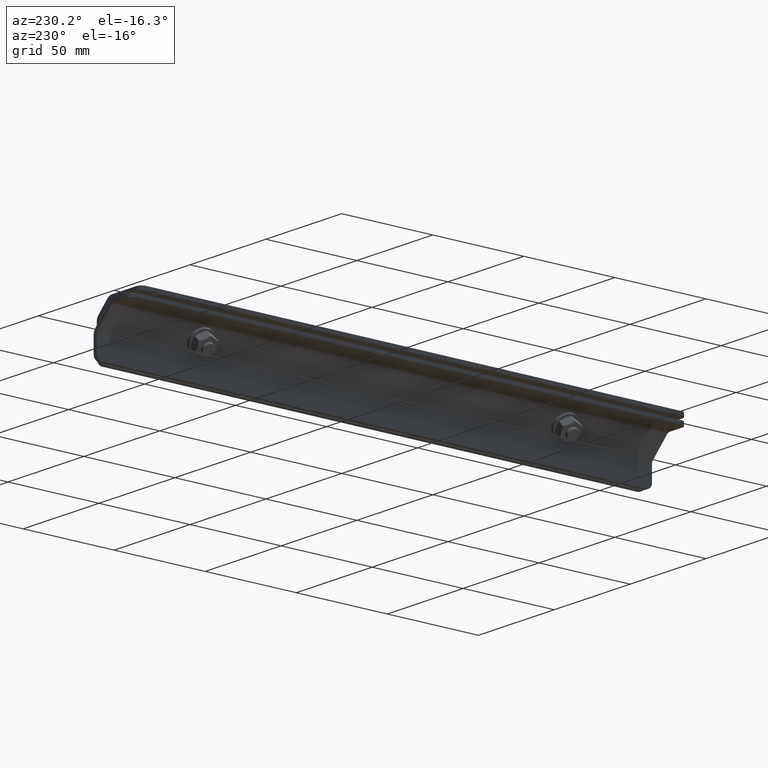
[diagram: clean part render]
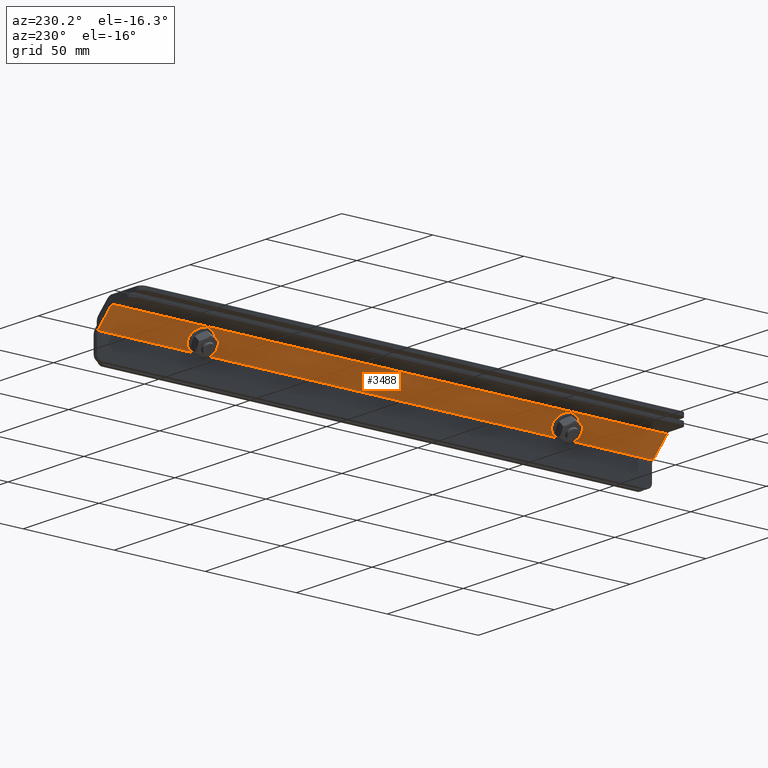
[diagram: same view with one face highlighted and labeled with its STEP entity id]
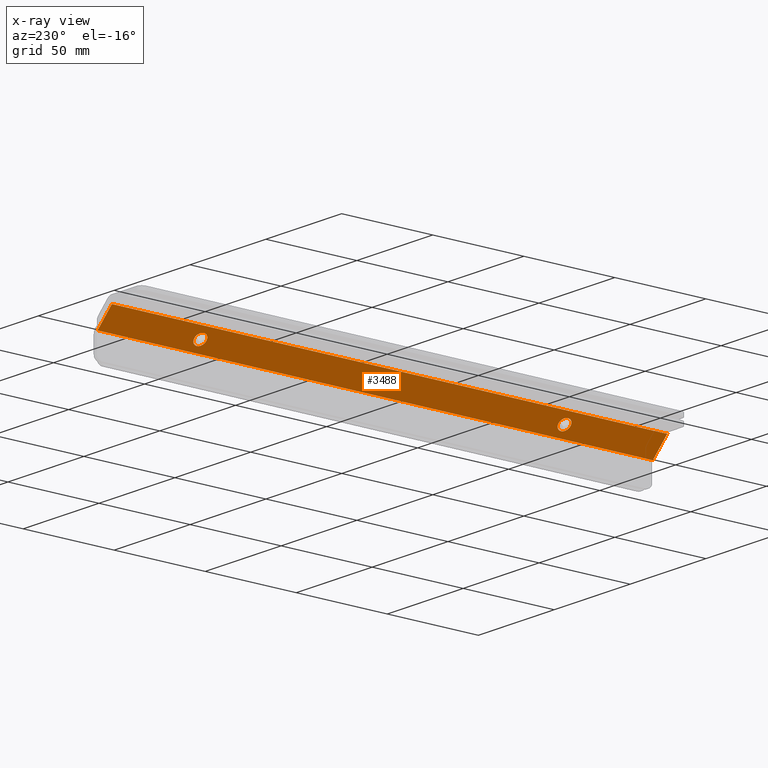
[diagram: x-ray of the same camera — body ghosted, the highlighted face saturated]
A machine part, auxiliary view. The second image highlights one B-rep face of the part: STEP entity #3488.
The next image is the same camera in x-ray: the body ghosted, the highlighted face saturated — about 0% of this face is hidden behind the body in this view.
In plain terms, the highlighted planar face has unit normal (-0.7071, 0, -0.7071).
Its self-contained STEP definition (entity closure, byte-faithful):
#36 = CARTESIAN_POINT ( 'NONE',  ( -13.05902687488442382, 228.2044532268045032, 168.3559130415574145 ) ) ;
#68 = DIRECTION ( 'NONE',  ( -0.000000000000000000, -1.000000000000000000, -0.000000000000000000 ) ) ;
#353 = PLANE ( 'NONE',  #4317 ) ;
#371 = FACE_BOUND ( 'NONE', #2774, .T. ) ;
#386 = CARTESIAN_POINT ( 'NONE',  ( -5.422273638069723845, 175.8044532268044975, 160.7191598047427306 ) ) ;
#447 = VECTOR ( 'NONE', #1687, 1000.000000000000000 ) ;
#542 = EDGE_CURVE ( 'NONE', #3645, #1457, #3736, .T. ) ;
#583 = CARTESIAN_POINT ( 'NONE',  ( -12.47324043725752141, 228.2044532268045032, 167.7701266039305210 ) ) ;
#603 = CIRCLE ( 'NONE', #2125, 3.299999999999994493 ) ;
#633 = DIRECTION ( 'NONE',  ( -0.7071067811865462405, 0.000000000000000000, 0.7071067811865489050 ) ) ;
#747 = CARTESIAN_POINT ( 'NONE',  ( -13.05902687488442382, 228.3044532268044691, 168.3559130415574145 ) ) ;
#817 = ORIENTED_EDGE ( 'NONE', *, *, #4083, .T. ) ;
#981 = EDGE_CURVE ( 'NONE', #2366, #3645, #3583, .T. ) ;
#1006 = CARTESIAN_POINT ( 'NONE',  ( -7.755726015985294097, -24.19554677319552027, 163.0526121826582653 ) ) ;
#1032 = VERTEX_POINT ( 'NONE', #3698 ) ;
#1133 = DIRECTION ( 'NONE',  ( 0.7071067811865481278, 0.000000000000000000, -0.7071067811865470176 ) ) ;
#1215 = DIRECTION ( 'NONE',  ( -0.7071067811865462405, 0.000000000000000000, 0.7071067811865489050 ) ) ;
#1266 = CARTESIAN_POINT ( 'NONE',  ( -13.05902687488442382, -76.69554677319553093, 168.3559130415574145 ) ) ;
#1348 = ORIENTED_EDGE ( 'NONE', *, *, #542, .T. ) ;
#1375 = VECTOR ( 'NONE', #3896, 1000.000000000000000 ) ;
#1440 = LINE ( 'NONE', #3080, #3885 ) ;
#1457 = VERTEX_POINT ( 'NONE', #2378 ) ;
#1511 = EDGE_CURVE ( 'NONE', #1457, #3214, #1440, .T. ) ;
#1687 = DIRECTION ( 'NONE',  ( 0.7071067811865462405, -0.000000000000000000, -0.7071067811865489050 ) ) ;
#1689 = DIRECTION ( 'NONE',  ( -0.7071067811865489050, 0.000000000000000000, -0.7071067811865462405 ) ) ;
#1726 = VERTEX_POINT ( 'NONE', #386 ) ;
#2041 = DIRECTION ( 'NONE',  ( 0.7071067811865487940, -0.000000000000000000, 0.7071067811865463515 ) ) ;
#2125 = AXIS2_PLACEMENT_3D ( 'NONE', #3798, #2145, #1133 ) ;
#2145 = DIRECTION ( 'NONE',  ( 0.7071067811865487940, -0.000000000000000000, 0.7071067811865463515 ) ) ;
#2188 = CARTESIAN_POINT ( 'NONE',  ( -12.47324043725752141, 228.3044532268044691, 167.7701266039305210 ) ) ;
#2366 = VERTEX_POINT ( 'NONE', #4245 ) ;
#2378 = CARTESIAN_POINT ( 'NONE',  ( -3.038211594713138730, 228.3044532268044691, 158.3350977613860948 ) ) ;
#2380 = DIRECTION ( 'NONE',  ( 0.7071067811865481278, 0.000000000000000000, -0.7071067811865470176 ) ) ;
#2389 = FACE_OUTER_BOUND ( 'NONE', #3448, .T. ) ;
#2624 = VECTOR ( 'NONE', #1215, 1000.000000000000000 ) ;
#2634 = CARTESIAN_POINT ( 'NONE',  ( -3.038211594713138730, -76.69554677319553093, 158.3350977613860948 ) ) ;
#2640 = EDGE_LOOP ( 'NONE', ( #3607 ) ) ;
#2772 = AXIS2_PLACEMENT_3D ( 'NONE', #1006, #2041, #2380 ) ;
#2774 = EDGE_LOOP ( 'NONE', ( #817 ) ) ;
#2904 = CIRCLE ( 'NONE', #2772, 3.299999999999994493 ) ;
#3080 = CARTESIAN_POINT ( 'NONE',  ( -3.038211594713138730, 228.2044532268045032, 158.3350977613860948 ) ) ;
#3099 = ORIENTED_EDGE ( 'NONE', *, *, #3685, .T. ) ;
#3214 = VERTEX_POINT ( 'NONE', #2634 ) ;
#3350 = FACE_BOUND ( 'NONE', #2640, .T. ) ;
#3448 = EDGE_LOOP ( 'NONE', ( #1348, #3768, #3099, #4208 ) ) ;
#3488 = ADVANCED_FACE ( 'NONE', ( #2389, #371, #3350 ), #353, .T. ) ;
#3583 = LINE ( 'NONE', #583, #1375 ) ;
#3607 = ORIENTED_EDGE ( 'NONE', *, *, #3862, .T. ) ;
#3645 = VERTEX_POINT ( 'NONE', #2188 ) ;
#3685 = EDGE_CURVE ( 'NONE', #3214, #2366, #3939, .T. ) ;
#3698 = CARTESIAN_POINT ( 'NONE',  ( -5.422273638069689206, -24.19554677319552027, 160.7191598047426737 ) ) ;
#3736 = LINE ( 'NONE', #747, #447 ) ;
#3768 = ORIENTED_EDGE ( 'NONE', *, *, #1511, .T. ) ;
#3798 = CARTESIAN_POINT ( 'NONE',  ( -7.755726015985328736, 175.8044532268044975, 163.0526121826583221 ) ) ;
#3862 = EDGE_CURVE ( 'NONE', #1726, #1726, #603, .T. ) ;
#3885 = VECTOR ( 'NONE', #68, 1000.000000000000000 ) ;
#3896 = DIRECTION ( 'NONE',  ( 0.000000000000000000, 1.000000000000000000, 0.000000000000000000 ) ) ;
#3939 = LINE ( 'NONE', #1266, #2624 ) ;
#4083 = EDGE_CURVE ( 'NONE', #1032, #1032, #2904, .T. ) ;
#4208 = ORIENTED_EDGE ( 'NONE', *, *, #981, .T. ) ;
#4245 = CARTESIAN_POINT ( 'NONE',  ( -12.47324043725752141, -76.69554677319553093, 167.7701266039305210 ) ) ;
#4317 = AXIS2_PLACEMENT_3D ( 'NONE', #36, #1689, #633 ) ;